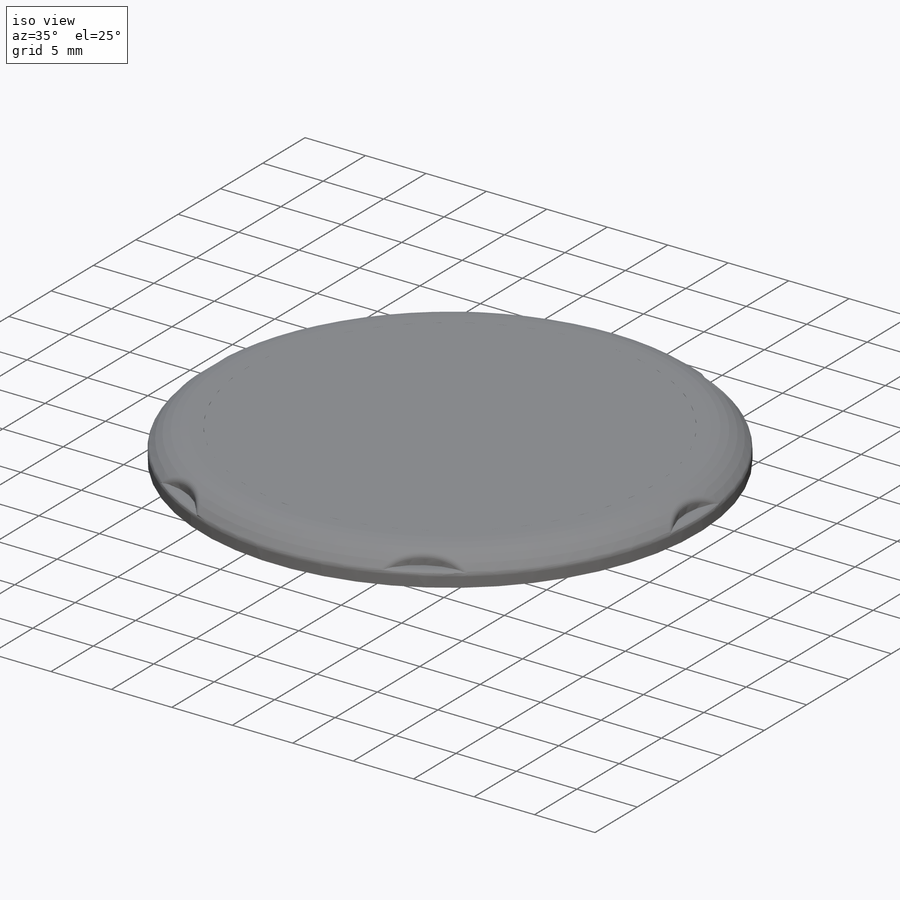
[diagram: iso view]
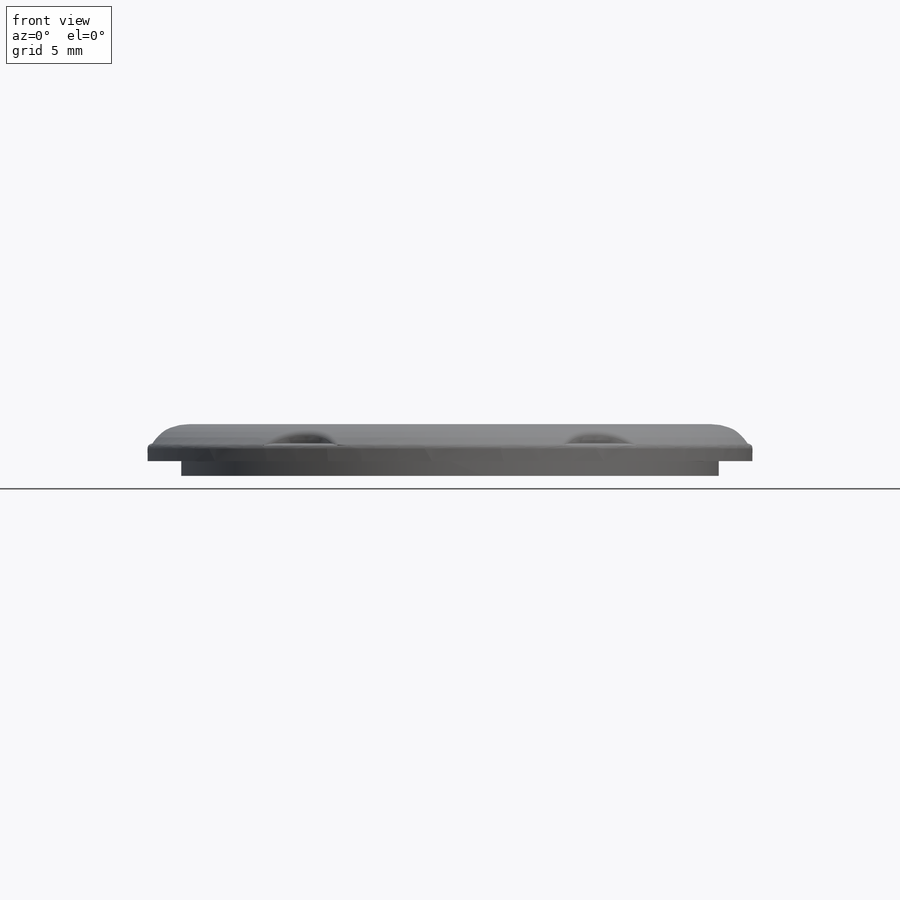
[diagram: front view]
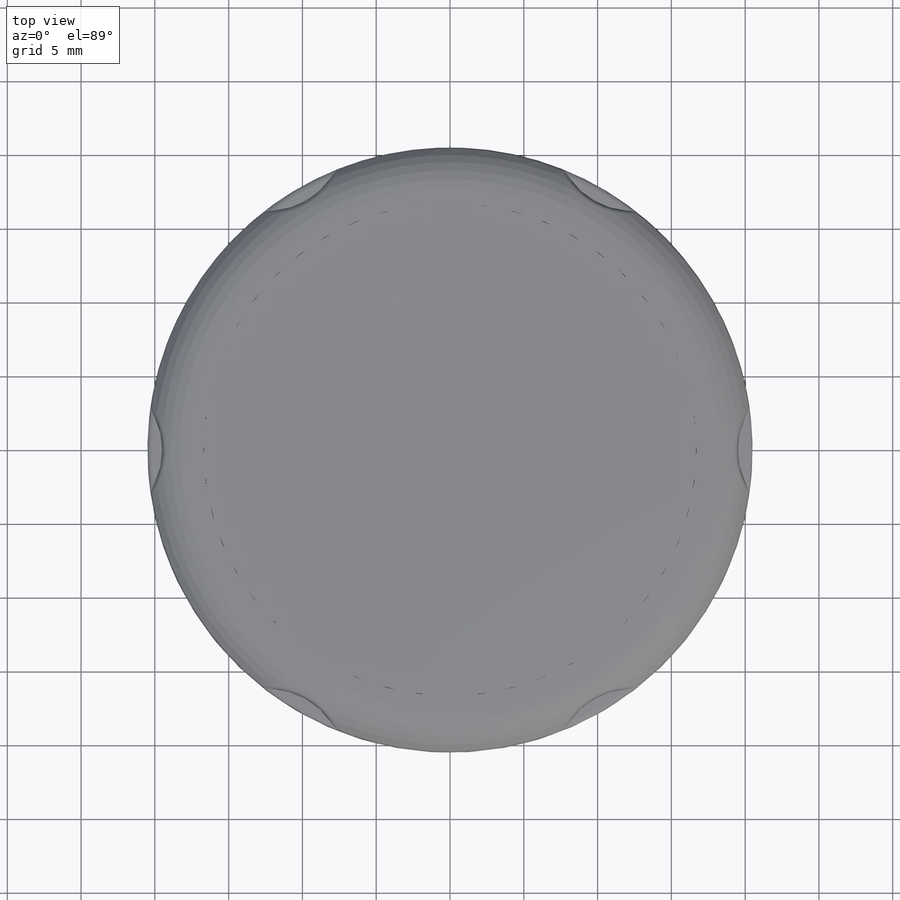
[diagram: top view]
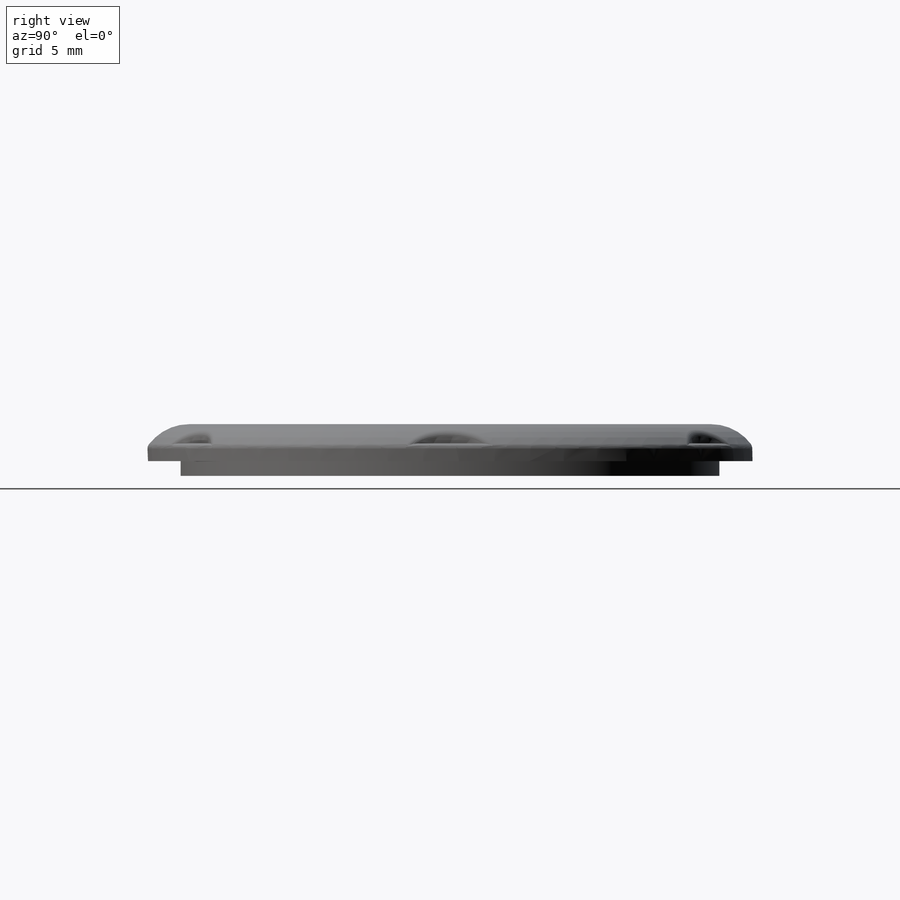
[diagram: right view]
SOLIDWORKS PART (.sldprt)
format: sldprt  version: not decoded by parser v0  size: 322,048 bytes
history: native  units: mm
features: sketch x4, extrude x2, material x1, revolve x1, cut_extrude x1, pattern_circular x1, fillet x1 (+11 scaffold rows collapsed)
feature tree (22):
  scaffold x11  (default folders/planes/origin — collapsed)
  material  "Material <not specified>"
  sketch  "Sketch1"  dims[D1=20.5mm D2=0.7mm D3=1.0mm D4=2.5mm D5=4.5mm D6=1.0mm D7=1.0mm]
  revolve  "Revolve1"  Angle=360deg
  sketch  "Sketch2"  dims[D1=10.0mm D2=24.5mm]
  cut_extrude  "Cut-Extrude1"  Depth=1.2mm
  pattern_circular  "CirPattern1"  Count=6 Angle=360deg
  fillet  "Fillet1"  Radius=0.5mm
  sketch  "Sketch3"  dims[D1=0.0mm]
  extrude  "Boss-Extrude1"  [1 undecoded]
  sketch  "Sketch4"  dims[D1=36.5mm D2=1.5mm]
  extrude  "Boss-Extrude2"  Depth=1mm
decode coverage: 9 of 10 modeling features carry decoded parameters
note: 1 parameter value undecoded
note: suppression state not decoded; provenance and decode notes live in map.json
